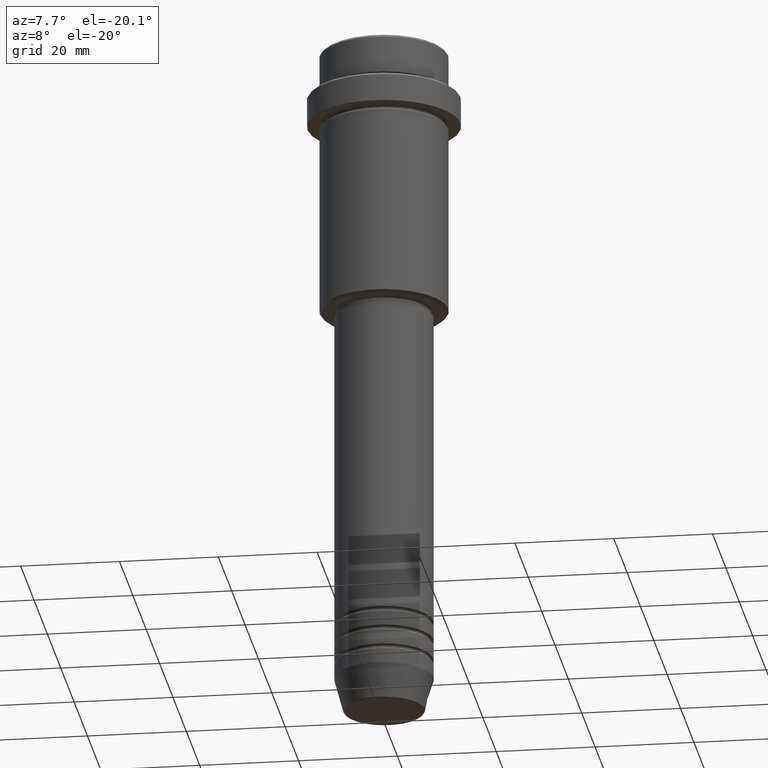
[diagram: clean part render]
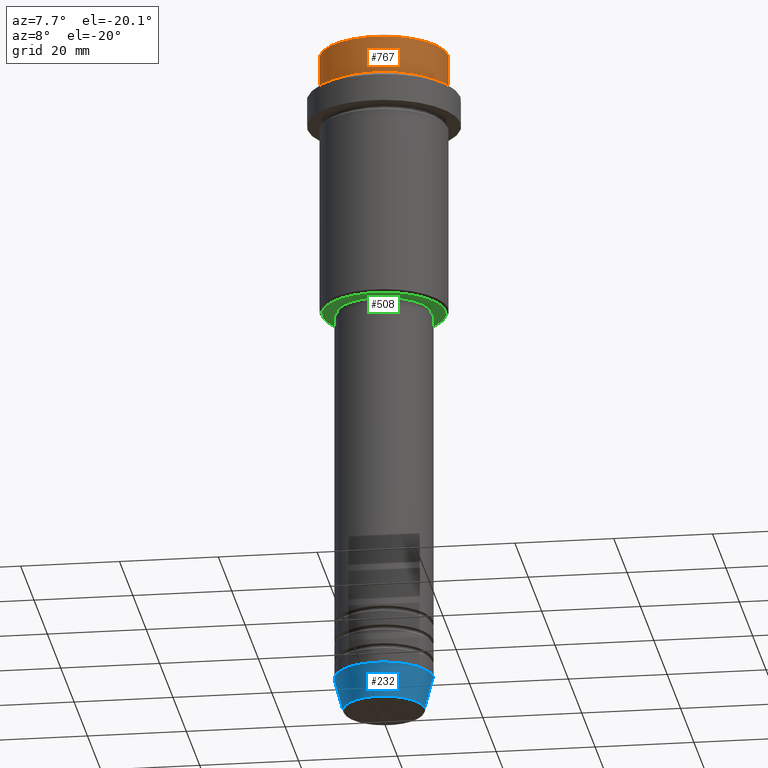
[diagram: same view with three faces highlighted in distinct colors, each labeled with its STEP entity id]
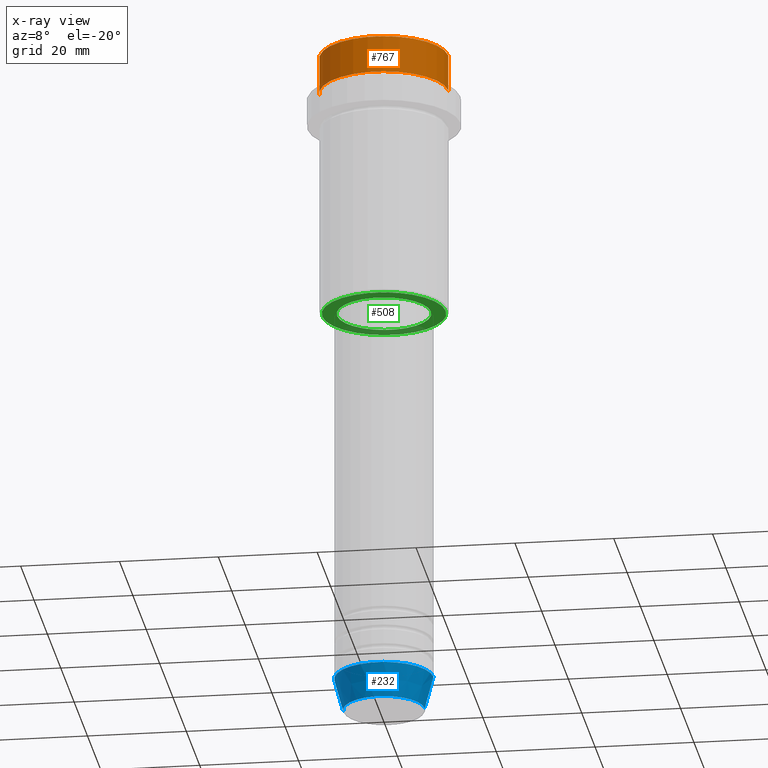
[diagram: x-ray of the same camera — body ghosted, the three highlighted faces saturated]
A machine part, auxiliary view with three faces highlighted in distinct colors.
The next image is the same camera in x-ray (body ghosted, the three faces saturated) — at least one of them is partly hidden behind the body in this view.
Their STEP definitions:

[orange] entity #767 — the highlighted cylindrical surface (partial cylindrical patch) has radius 13 mm, axis along (-0, -0, 1).
#101 = CIRCLE ( 'NONE', #816, 12.99999999999999822 ) ;
#115 = DIRECTION ( 'NONE',  ( -0.000000000000000000, -0.000000000000000000, 1.000000000000000000 ) ) ;
#177 = ORIENTED_EDGE ( 'NONE', *, *, #855, .T. ) ;
#200 = CARTESIAN_POINT ( 'NONE',  ( -12.99999999999999822, 1.592040838891558898E-15, 0.000000000000000000 ) ) ;
#230 = VERTEX_POINT ( 'NONE', #947 ) ;
#325 = CIRCLE ( 'NONE', #451, 12.99999999999999822 ) ;
#338 = FACE_OUTER_BOUND ( 'NONE', #424, .T. ) ;
#352 = VECTOR ( 'NONE', #438, 1000.000000000000000 ) ;
#378 = CARTESIAN_POINT ( 'NONE',  ( -12.99999999999999822, 1.592040838891558898E-15, -7.999999999999998224 ) ) ;
#391 = EDGE_CURVE ( 'NONE', #1347, #1235, #101, .T. ) ;
#423 = DIRECTION ( 'NONE',  ( 0.000000000000000000, 0.000000000000000000, -1.000000000000000000 ) ) ;
#424 = EDGE_LOOP ( 'NONE', ( #1011, #1172, #177, #1395 ) ) ;
#430 = VECTOR ( 'NONE', #1193, 1000.000000000000000 ) ;
#438 = DIRECTION ( 'NONE',  ( -0.000000000000000000, -0.000000000000000000, 1.000000000000000000 ) ) ;
#451 = AXIS2_PLACEMENT_3D ( 'NONE', #838, #423, #1188 ) ;
#648 = EDGE_CURVE ( 'NONE', #672, #230, #325, .T. ) ;
#652 = CARTESIAN_POINT ( 'NONE',  ( 0.000000000000000000, 0.000000000000000000, 0.000000000000000000 ) ) ;
#670 = CARTESIAN_POINT ( 'NONE',  ( 12.99999999999999822, 0.000000000000000000, 0.000000000000000000 ) ) ;
#672 = VERTEX_POINT ( 'NONE', #1274 ) ;
#767 = ADVANCED_FACE ( 'NONE', ( #338 ), #987, .T. ) ;
#812 = DIRECTION ( 'NONE',  ( 1.000000000000000000, 0.000000000000000000, 0.000000000000000000 ) ) ;
#816 = AXIS2_PLACEMENT_3D ( 'NONE', #1119, #1345, #812 ) ;
#838 = CARTESIAN_POINT ( 'NONE',  ( 0.000000000000000000, 0.000000000000000000, -0.4999999999999900080 ) ) ;
#855 = EDGE_CURVE ( 'NONE', #1235, #672, #1199, .T. ) ;
#868 = LINE ( 'NONE', #200, #352 ) ;
#873 = CARTESIAN_POINT ( 'NONE',  ( 12.99999999999999822, 0.000000000000000000, -7.999999999999998224 ) ) ;
#882 = AXIS2_PLACEMENT_3D ( 'NONE', #652, #115, #1207 ) ;
#947 = CARTESIAN_POINT ( 'NONE',  ( -12.99999999999999822, 1.592040838891558898E-15, -0.4999999999999900080 ) ) ;
#987 = CYLINDRICAL_SURFACE ( 'NONE', #882, 12.99999999999999822 ) ;
#1011 = ORIENTED_EDGE ( 'NONE', *, *, #1197, .F. ) ;
#1119 = CARTESIAN_POINT ( 'NONE',  ( 0.000000000000000000, 0.000000000000000000, -7.999999999999998224 ) ) ;
#1172 = ORIENTED_EDGE ( 'NONE', *, *, #391, .T. ) ;
#1188 = DIRECTION ( 'NONE',  ( 1.000000000000000000, 0.000000000000000000, 0.000000000000000000 ) ) ;
#1193 = DIRECTION ( 'NONE',  ( -0.000000000000000000, -0.000000000000000000, 1.000000000000000000 ) ) ;
#1197 = EDGE_CURVE ( 'NONE', #1347, #230, #868, .T. ) ;
#1199 = LINE ( 'NONE', #670, #430 ) ;
#1207 = DIRECTION ( 'NONE',  ( 1.000000000000000000, 0.000000000000000000, 0.000000000000000000 ) ) ;
#1235 = VERTEX_POINT ( 'NONE', #873 ) ;
#1274 = CARTESIAN_POINT ( 'NONE',  ( 12.99999999999999822, 0.000000000000000000, -0.4999999999999900080 ) ) ;
#1345 = DIRECTION ( 'NONE',  ( -0.000000000000000000, -0.000000000000000000, 1.000000000000000000 ) ) ;
#1347 = VERTEX_POINT ( 'NONE', #378 ) ;
#1395 = ORIENTED_EDGE ( 'NONE', *, *, #648, .T. ) ;

[blue] entity #232 — the highlighted conical surface has half-angle 15 deg.
#59 = VERTEX_POINT ( 'NONE', #260 ) ;
#64 = CARTESIAN_POINT ( 'NONE',  ( 8.223655072137189492, 0.000000000000000000, -139.6294095225512706 ) ) ;
#75 = AXIS2_PLACEMENT_3D ( 'NONE', #469, #1306, #878 ) ;
#81 = DIRECTION ( 'NONE',  ( 1.000000000000000000, 0.000000000000000000, 0.000000000000000000 ) ) ;
#82 = EDGE_CURVE ( 'NONE', #1124, #59, #501, .T. ) ;
#119 = EDGE_CURVE ( 'NONE', #935, #59, #951, .T. ) ;
#232 = ADVANCED_FACE ( 'NONE', ( #330 ), #1040, .T. ) ;
#260 = CARTESIAN_POINT ( 'NONE',  ( 10.00000000000000000, 0.000000000000000000, -133.0000000000000000 ) ) ;
#292 = EDGE_CURVE ( 'NONE', #1151, #1124, #1362, .T. ) ;
#323 = AXIS2_PLACEMENT_3D ( 'NONE', #790, #1099, #1194 ) ;
#330 = FACE_OUTER_BOUND ( 'NONE', #1186, .T. ) ;
#368 = CARTESIAN_POINT ( 'NONE',  ( 10.00000000000000000, 0.000000000000000000, -133.0000000000000000 ) ) ;
#437 = ORIENTED_EDGE ( 'NONE', *, *, #292, .T. ) ;
#465 = ORIENTED_EDGE ( 'NONE', *, *, #119, .F. ) ;
#469 = CARTESIAN_POINT ( 'NONE',  ( 0.000000000000000000, 0.000000000000000000, -139.6294095225512706 ) ) ;
#501 = LINE ( 'NONE', #368, #773 ) ;
#594 = ORIENTED_EDGE ( 'NONE', *, *, #1072, .F. ) ;
#694 = AXIS2_PLACEMENT_3D ( 'NONE', #861, #746, #81 ) ;
#730 = CARTESIAN_POINT ( 'NONE',  ( -10.00000000000000000, 1.224646799147353256E-15, -133.0000000000000000 ) ) ;
#746 = DIRECTION ( 'NONE',  ( -0.000000000000000000, -0.000000000000000000, 1.000000000000000000 ) ) ;
#773 = VECTOR ( 'NONE', #934, 1000.000000000000114 ) ;
#790 = CARTESIAN_POINT ( 'NONE',  ( 0.000000000000000000, 0.000000000000000000, -133.0000000000000000 ) ) ;
#804 = CARTESIAN_POINT ( 'NONE',  ( -10.00000000000000000, 1.224646799147353256E-15, -133.0000000000000000 ) ) ;
#836 = DIRECTION ( 'NONE',  ( -0.2588190451025214611, 3.169619151431774186E-17, 0.9659258262890679791 ) ) ;
#861 = CARTESIAN_POINT ( 'NONE',  ( 0.000000000000000000, 0.000000000000000000, -133.0000000000000000 ) ) ;
#878 = DIRECTION ( 'NONE',  ( 1.000000000000000000, 0.000000000000000000, 0.000000000000000000 ) ) ;
#934 = DIRECTION ( 'NONE',  ( 0.2588190451025214611, 0.000000000000000000, 0.9659258262890679791 ) ) ;
#935 = VERTEX_POINT ( 'NONE', #804 ) ;
#951 = CIRCLE ( 'NONE', #694, 10.00000000000000000 ) ;
#995 = VECTOR ( 'NONE', #836, 1000.000000000000114 ) ;
#1040 = CONICAL_SURFACE ( 'NONE', #323, 10.00000000000000000, 0.2617993877991502405 ) ;
#1072 = EDGE_CURVE ( 'NONE', #1151, #935, #1273, .T. ) ;
#1099 = DIRECTION ( 'NONE',  ( -0.000000000000000000, -0.000000000000000000, 1.000000000000000000 ) ) ;
#1124 = VERTEX_POINT ( 'NONE', #64 ) ;
#1151 = VERTEX_POINT ( 'NONE', #1187 ) ;
#1186 = EDGE_LOOP ( 'NONE', ( #594, #437, #1248, #465 ) ) ;
#1187 = CARTESIAN_POINT ( 'NONE',  ( -8.223655072137189492, 1.115877042642911856E-15, -139.6294095225512706 ) ) ;
#1194 = DIRECTION ( 'NONE',  ( 1.000000000000000000, 0.000000000000000000, 0.000000000000000000 ) ) ;
#1248 = ORIENTED_EDGE ( 'NONE', *, *, #82, .T. ) ;
#1273 = LINE ( 'NONE', #730, #995 ) ;
#1306 = DIRECTION ( 'NONE',  ( -0.000000000000000000, -0.000000000000000000, 1.000000000000000000 ) ) ;
#1362 = CIRCLE ( 'NONE', #75, 8.223655072137189492 ) ;

[green] entity #508 — the highlighted planar face has unit normal (0, 0, -1).
#23 = VERTEX_POINT ( 'NONE', #1231 ) ;
#60 = FACE_OUTER_BOUND ( 'NONE', #892, .T. ) ;
#66 = DIRECTION ( 'NONE',  ( -0.000000000000000000, -0.000000000000000000, 1.000000000000000000 ) ) ;
#80 = DIRECTION ( 'NONE',  ( 0.000000000000000000, 0.000000000000000000, -1.000000000000000000 ) ) ;
#84 = VERTEX_POINT ( 'NONE', #1368 ) ;
#128 = ORIENTED_EDGE ( 'NONE', *, *, #131, .T. ) ;
#131 = EDGE_CURVE ( 'NONE', #976, #84, #277, .T. ) ;
#194 = CIRCLE ( 'NONE', #990, 9.499999999999996447 ) ;
#196 = DIRECTION ( 'NONE',  ( 1.000000000000000000, 0.000000000000000000, 0.000000000000000000 ) ) ;
#197 = EDGE_CURVE ( 'NONE', #84, #976, #194, .T. ) ;
#209 = CARTESIAN_POINT ( 'NONE',  ( 0.000000000000000000, 0.000000000000000000, -55.00000000000000711 ) ) ;
#249 = EDGE_CURVE ( 'NONE', #23, #271, #450, .T. ) ;
#264 = CARTESIAN_POINT ( 'NONE',  ( 9.499999999999996447, 0.000000000000000000, -55.00000000000000711 ) ) ;
#271 = VERTEX_POINT ( 'NONE', #1324 ) ;
#277 = CIRCLE ( 'NONE', #570, 9.499999999999996447 ) ;
#284 = CARTESIAN_POINT ( 'NONE',  ( 0.000000000000000000, 0.000000000000000000, -55.00000000000000711 ) ) ;
#296 = CARTESIAN_POINT ( 'NONE',  ( 0.000000000000000000, 0.000000000000000000, -55.00000000000000711 ) ) ;
#346 = AXIS2_PLACEMENT_3D ( 'NONE', #608, #1045, #798 ) ;
#401 = AXIS2_PLACEMENT_3D ( 'NONE', #296, #80, #744 ) ;
#411 = DIRECTION ( 'NONE',  ( 1.000000000000000000, 0.000000000000000000, 0.000000000000000000 ) ) ;
#413 = ORIENTED_EDGE ( 'NONE', *, *, #715, .T. ) ;
#450 = CIRCLE ( 'NONE', #523, 12.50000000000001066 ) ;
#508 = ADVANCED_FACE ( 'NONE', ( #60, #910 ), #820, .T. ) ;
#523 = AXIS2_PLACEMENT_3D ( 'NONE', #209, #1415, #1114 ) ;
#531 = CARTESIAN_POINT ( 'NONE',  ( 0.000000000000000000, 0.000000000000000000, -55.00000000000000711 ) ) ;
#570 = AXIS2_PLACEMENT_3D ( 'NONE', #284, #1290, #411 ) ;
#608 = CARTESIAN_POINT ( 'NONE',  ( 0.000000000000000000, 13.00000000000000000, -55.00000000000000711 ) ) ;
#624 = EDGE_LOOP ( 'NONE', ( #128, #1028 ) ) ;
#715 = EDGE_CURVE ( 'NONE', #271, #23, #1021, .T. ) ;
#744 = DIRECTION ( 'NONE',  ( -1.000000000000000000, 0.000000000000000000, 0.000000000000000000 ) ) ;
#798 = DIRECTION ( 'NONE',  ( -1.000000000000000000, 0.000000000000000000, -0.000000000000000000 ) ) ;
#820 = PLANE ( 'NONE',  #346 ) ;
#892 = EDGE_LOOP ( 'NONE', ( #413, #1163 ) ) ;
#910 = FACE_BOUND ( 'NONE', #624, .T. ) ;
#976 = VERTEX_POINT ( 'NONE', #264 ) ;
#990 = AXIS2_PLACEMENT_3D ( 'NONE', #531, #66, #196 ) ;
#1021 = CIRCLE ( 'NONE', #401, 12.50000000000001066 ) ;
#1028 = ORIENTED_EDGE ( 'NONE', *, *, #197, .T. ) ;
#1045 = DIRECTION ( 'NONE',  ( 0.000000000000000000, 0.000000000000000000, -1.000000000000000000 ) ) ;
#1114 = DIRECTION ( 'NONE',  ( -1.000000000000000000, 0.000000000000000000, 0.000000000000000000 ) ) ;
#1163 = ORIENTED_EDGE ( 'NONE', *, *, #249, .T. ) ;
#1231 = CARTESIAN_POINT ( 'NONE',  ( -12.50000000000001066, 1.561424668912876097E-15, -55.00000000000000711 ) ) ;
#1290 = DIRECTION ( 'NONE',  ( -0.000000000000000000, -0.000000000000000000, 1.000000000000000000 ) ) ;
#1324 = CARTESIAN_POINT ( 'NONE',  ( 12.50000000000001066, 0.000000000000000000, -55.00000000000000711 ) ) ;
#1368 = CARTESIAN_POINT ( 'NONE',  ( -9.499999999999996447, 1.163414459189985091E-15, -55.00000000000000711 ) ) ;
#1415 = DIRECTION ( 'NONE',  ( 0.000000000000000000, 0.000000000000000000, -1.000000000000000000 ) ) ;